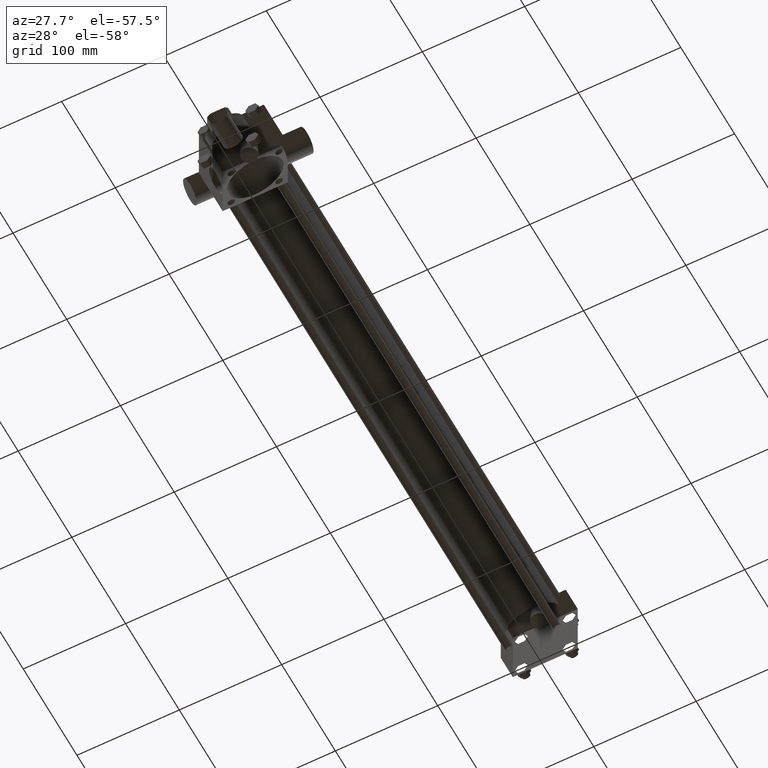
[diagram: clean part render]
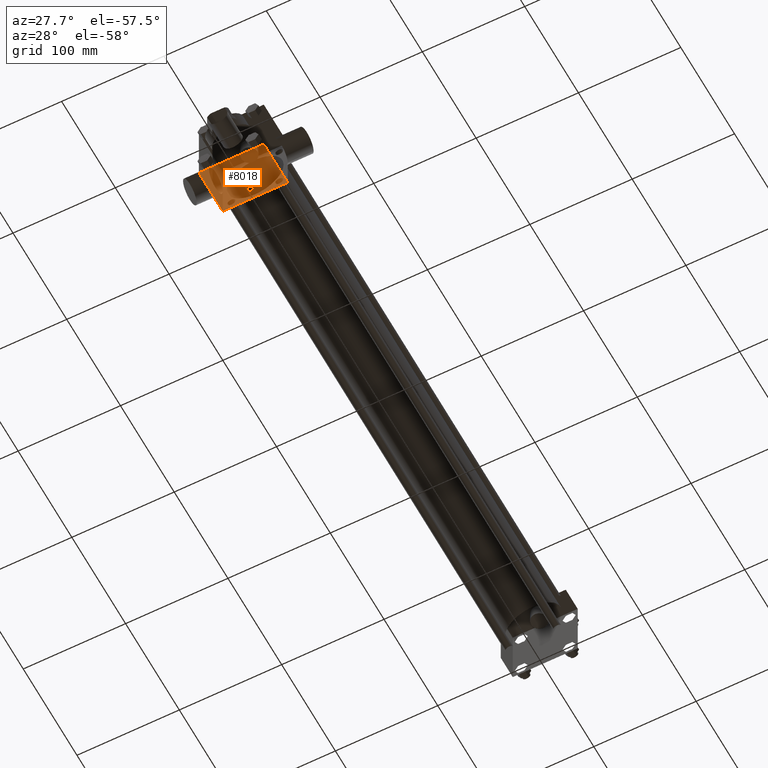
[diagram: same view with one face highlighted and labeled with its STEP entity id]
A machine part, auxiliary view. The second image highlights one B-rep face of the part: STEP entity #8018.
In plain terms, the highlighted planar face has unit normal (0, 0, -1).
Its self-contained STEP definition (entity closure, byte-faithful):
#480=EDGE_CURVE('',#485,#486,#481,.T.);
#481=LINE('',#482,#483);
#482=CARTESIAN_POINT('',(-3.175000000E+001,6.985000000E+001,-3.175000000E+001));
#483=VECTOR('',#484,1.0E+000);
#484=DIRECTION('',(1.0E+000,0.0E+000,0.0E+000));
#485=VERTEX_POINT('',#487);
#486=VERTEX_POINT('',#488);
#487=CARTESIAN_POINT('',(-3.175000000E+001,6.985000000E+001,-3.175000000E+001));
#488=CARTESIAN_POINT('',(3.175000000E+001,6.985000000E+001,-3.175000000E+001));
#549=FACE_OUTER_BOUND('',#551,.T.);
#550=FACE_BOUND('',#552,.T.);
#551=EDGE_LOOP('',(#553,#554,#555,#556));
#552=EDGE_LOOP('',(#576));
#553=ORIENTED_EDGE('',*,*,#557,.T.);
#554=ORIENTED_EDGE('',*,*,#564,.F.);
#555=ORIENTED_EDGE('',*,*,#571,.F.);
#556=ORIENTED_EDGE('',*,*,#480,.T.);
#557=EDGE_CURVE('',#486,#562,#558,.T.);
#558=LINE('',#559,#560);
#559=CARTESIAN_POINT('',(3.175000000E+001,6.985000000E+001,-3.175000000E+001));
#560=VECTOR('',#561,1.0E+000);
#561=DIRECTION('',(0.0E+000,-1.0E+000,0.0E+000));
#562=VERTEX_POINT('',#563);
#563=CARTESIAN_POINT('',(3.175000000E+001,2.540000000E+001,-3.175000000E+001));
#564=EDGE_CURVE('',#569,#562,#565,.T.);
#565=LINE('',#566,#567);
#566=CARTESIAN_POINT('',(-3.175000000E+001,2.540000000E+001,-3.175000000E+001));
#567=VECTOR('',#568,1.0E+000);
#568=DIRECTION('',(1.0E+000,0.0E+000,0.0E+000));
#569=VERTEX_POINT('',#570);
#570=CARTESIAN_POINT('',(-3.175000000E+001,2.540000000E+001,-3.175000000E+001));
#571=EDGE_CURVE('',#485,#569,#572,.T.);
#572=LINE('',#573,#574);
#573=CARTESIAN_POINT('',(-3.175000000E+001,6.985000000E+001,-3.175000000E+001));
#574=VECTOR('',#575,1.0E+000);
#575=DIRECTION('',(0.0E+000,-1.0E+000,0.0E+000));
#576=ORIENTED_EDGE('',*,*,#577,.T.);
#577=EDGE_CURVE('',#583,#583,#578,.T.);
#578=CIRCLE('',#579,2.778125000E+000);
#579=AXIS2_PLACEMENT_3D('',#580,#581,#582);
#580=CARTESIAN_POINT('',(0.000000000E+000,6.032500000E+001,-3.175000000E+001));
#581=DIRECTION('',(0.0E+000,0.0E+000,1.0E+000));
#582=DIRECTION('',(1.0E+000,0.0E+000,0.0E+000));
#583=VERTEX_POINT('',#584);
#584=CARTESIAN_POINT('',(2.778125000E+000,6.032500000E+001,-3.175000000E+001));
#585=PLANE('',#586);
#586=AXIS2_PLACEMENT_3D('',#587,#588,#589);
#587=CARTESIAN_POINT('',(-3.175000000E+001,6.985000000E+001,-3.175000000E+001));
#588=DIRECTION('',(0.0E+000,0.0E+000,-1.0E+000));
#589=DIRECTION('',(-1.0E+000,0.0E+000,0.0E+000));
#8018=ADVANCED_FACE('',(#549,#550),#585,.T.);